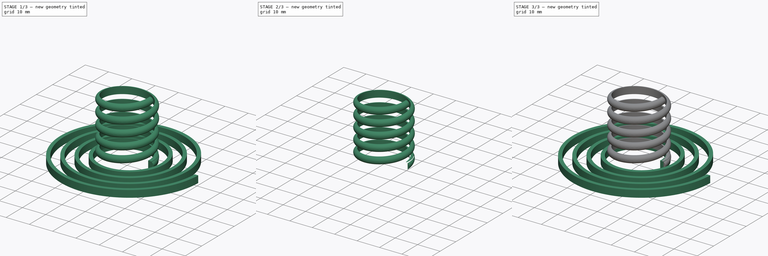
[diagram: build sequence overview — one tinted view per stage of 3, left to right]
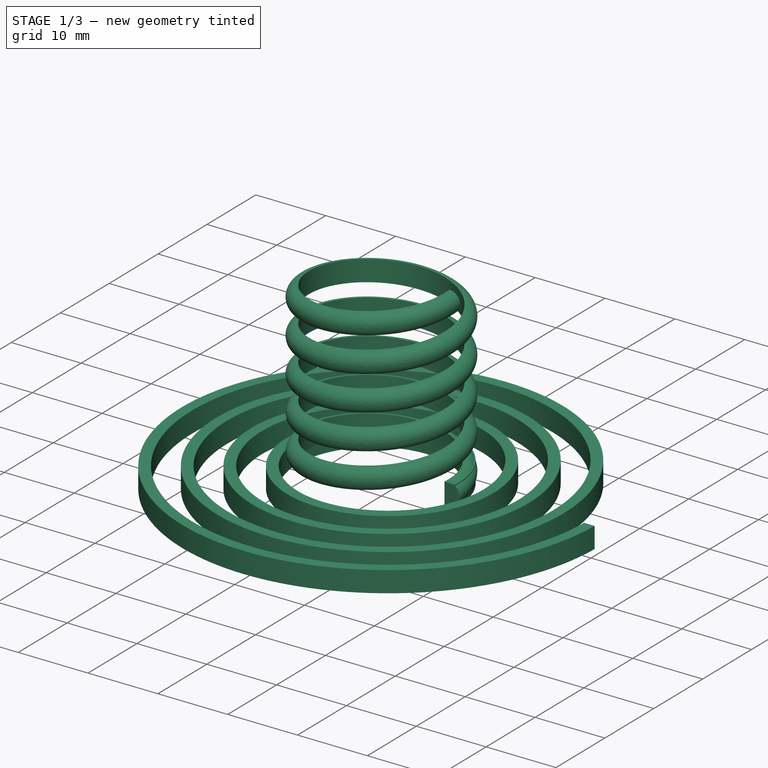
[diagram: stage 1 of 3 — iso view after this stage's code; geometry added in this stage tinted green]
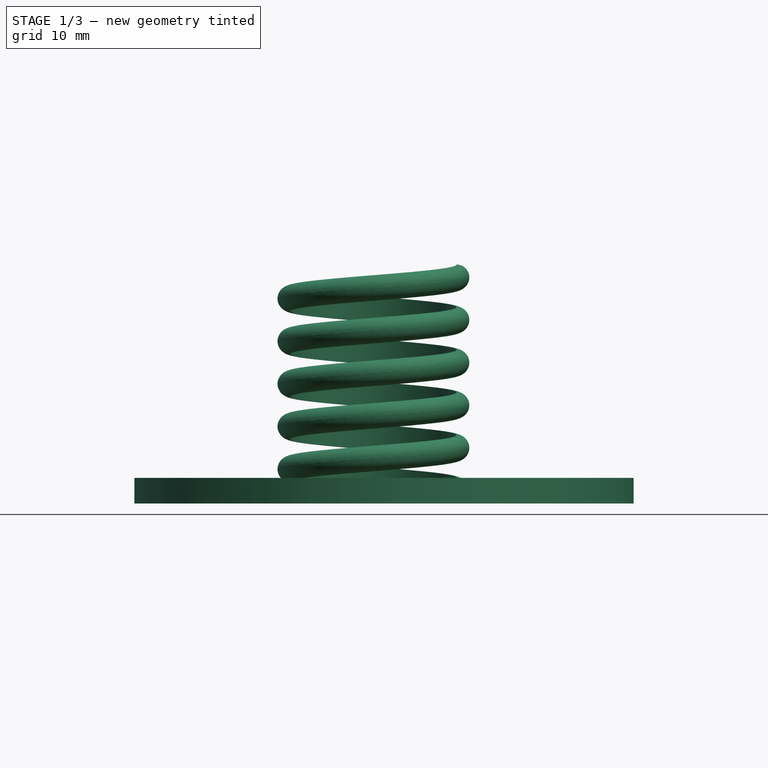
[diagram: stage 1 of 3 — front view after this stage's code; geometry added in this stage tinted green]
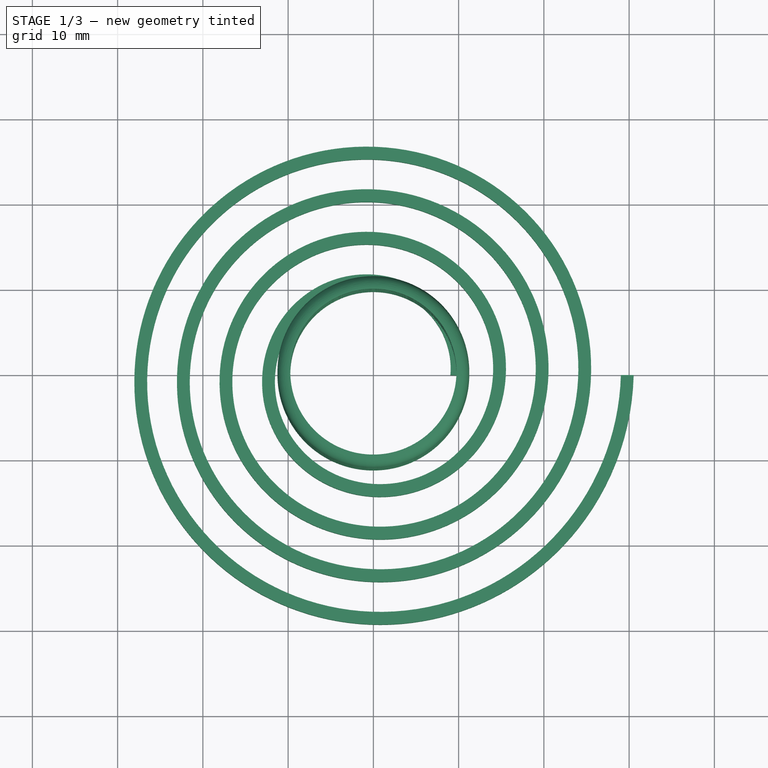
[diagram: stage 1 of 3 — top view after this stage's code; geometry added in this stage tinted green]
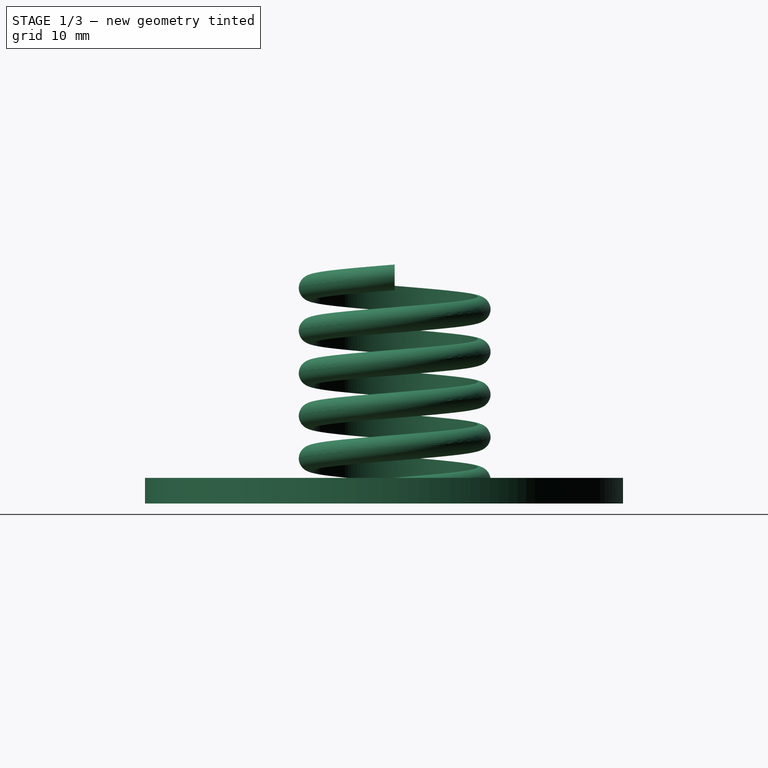
[diagram: stage 1 of 3 — right view after this stage's code; geometry added in this stage tinted green]
FCSTD DOCUMENT  (FreeCAD 0.18R16117 (Git))
Label: spiral emergency candleholder
License: All rights reserved
LicenseURL: http://en.wikipedia.org/wiki/All_rights_reserved
objects: Sketcher::SketchObject×3, Part::Sweep×3, Part::Spiral×2, Part::Helix×1, PartDesign::Body×1, Part::Cut×1, Part::MultiFuse×1
note: 12 computed .brp shape members not serialized (recipe doc carries the construction recipe); baked Part::Feature solids carry a one-line shape summary decoded from their .brp

FEATURE [Part::Helix] Helix
  Angle = 0
  AttacherType = Attacher::AttachEngine3D
  Height = 25
  LocalCoord = 0
  Pitch = 5
  Radius = 9.75
  Style = 1
FEATURE [Sketcher::SketchObject] Sketch003  label="Sketch001"
  MapMode = 5
  Placement = pos=(0,0,0) rot=(1,0,0;1.5708rad)
  sketch-geometry (2):
    g0: LineSegment StartX=9.75 StartY=2.9239e-12 StartZ=0 EndX=9.75 EndY=3 EndZ=0
    g1: ArcOfCircle CenterX=9.75033 CenterY=1.5 CenterZ=0 NormalX=0 NormalY=0 NormalZ=1 AngleXU=0 Radius=1.5 StartAngle=4.71217 EndAngle=7.8542
  constraints (4):
    c: DistanceY(g0,g0) = 3
    c: Vertical(g0)
    c: Coincident(g0,g1)
    c: Coincident(g1,g0)
FEATURE [PartDesign::Body] Body
  Group = -> [Sketch,Sketch003]
  Origin = -> Origin
FEATURE [Part::Sweep] Sweep001
  Frenet = true
  Sections = -> [Sketch003]
  Solid = true
  Spine = -> Helix
  Transition = 1
FEATURE [Part::Spiral] Spiral001
  AttacherType = Attacher::AttachEngine3D
  Growth = 5
  Radius = 9
  Rotations = 4
FEATURE [Sketcher::SketchObject] Sketch004
  MapMode = 5
  Placement = pos=(0,0,0) rot=(1,0,0;1.5708rad)
  Support = -> [XZ_Plane001]
  sketch-geometry (4):
    g0: LineSegment StartX=29.0288 StartY=-0.0265109 StartZ=0 EndX=30.5288 EndY=-0.0265109 EndZ=0
    g1: LineSegment StartX=30.5288 StartY=-0.0265109 StartZ=0 EndX=30.5288 EndY=2.97349 EndZ=0
    g2: LineSegment StartX=30.5288 StartY=2.97349 StartZ=0 EndX=29.0288 EndY=2.97349 EndZ=0
    g3: LineSegment StartX=29.0288 StartY=2.97349 StartZ=0 EndX=29.0288 EndY=-0.0265109 EndZ=0
  constraints (10):
    c: Coincident(g0,g1)
    c: Coincident(g1,g2)
    c: Coincident(g2,g3)
    c: Coincident(g3,g0)
    c: Horizontal(g0)
    c: Horizontal(g2)
    c: Vertical(g1)
    c: Vertical(g3)
    c: DistanceX(g2,g2) = 1.5
    c: DistanceY(g1,g1) = 3
FEATURE [Part::Sweep] Sweep002
  Frenet = true
  Sections = -> [Sketch004]
  Solid = true
  Spine = -> Spiral001 [Edge1]
  Transition = 1
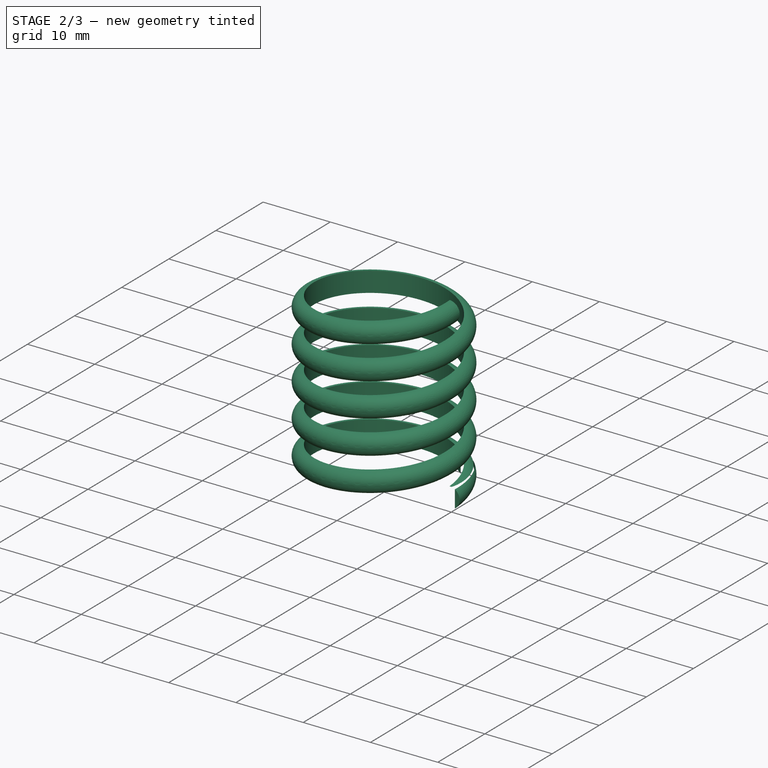
[diagram: stage 2 of 3 — iso view after this stage's code; geometry added in this stage tinted green]
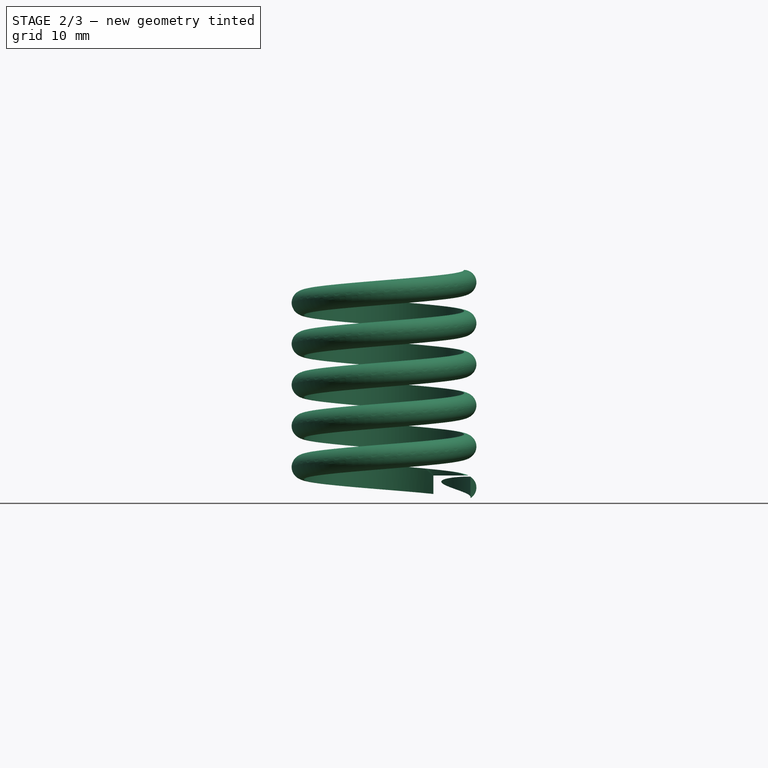
[diagram: stage 2 of 3 — front view after this stage's code; geometry added in this stage tinted green]
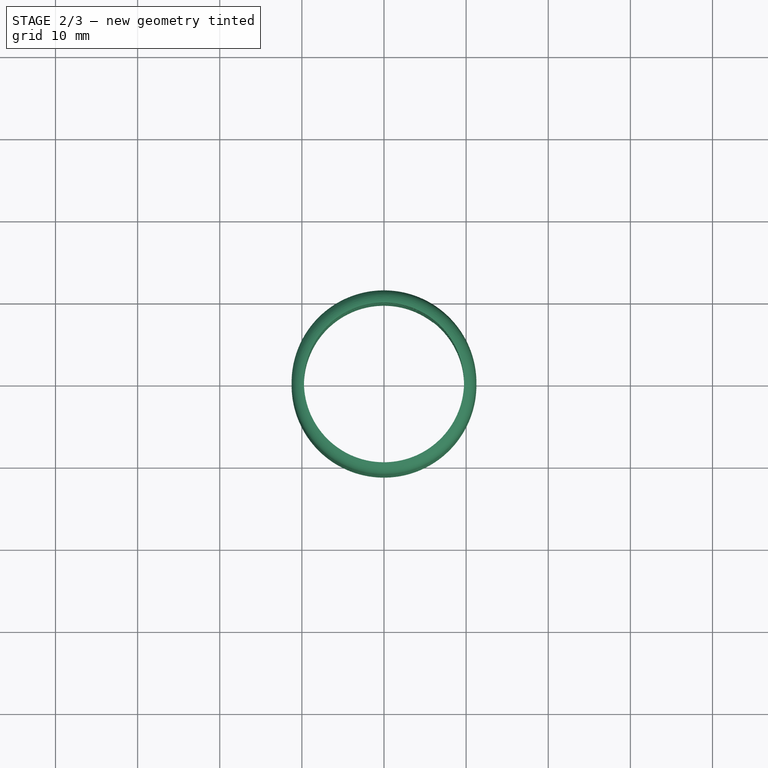
[diagram: stage 2 of 3 — top view after this stage's code; geometry added in this stage tinted green]
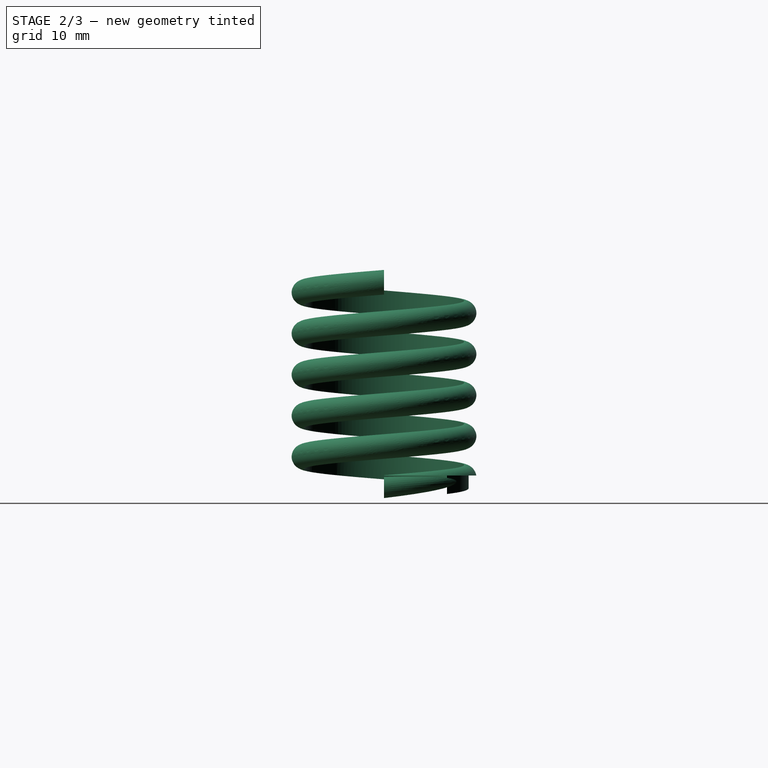
[diagram: stage 2 of 3 — right view after this stage's code; geometry added in this stage tinted green]
FEATURE [Part::Cut] Cut
  Base = -> Sweep001
  Tool = -> Sweep002
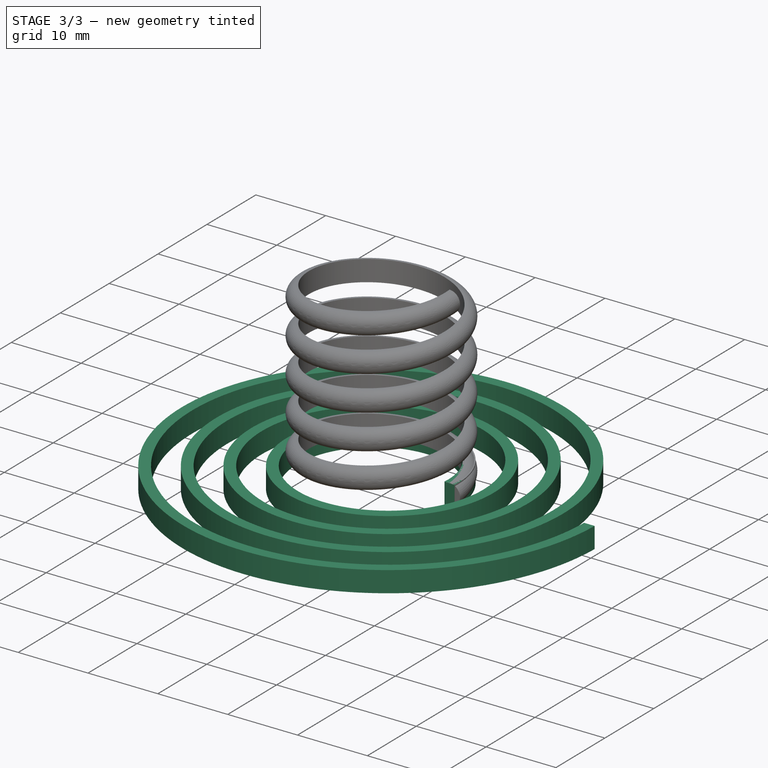
[diagram: stage 3 of 3 — iso view after this stage's code; geometry added in this stage tinted green]
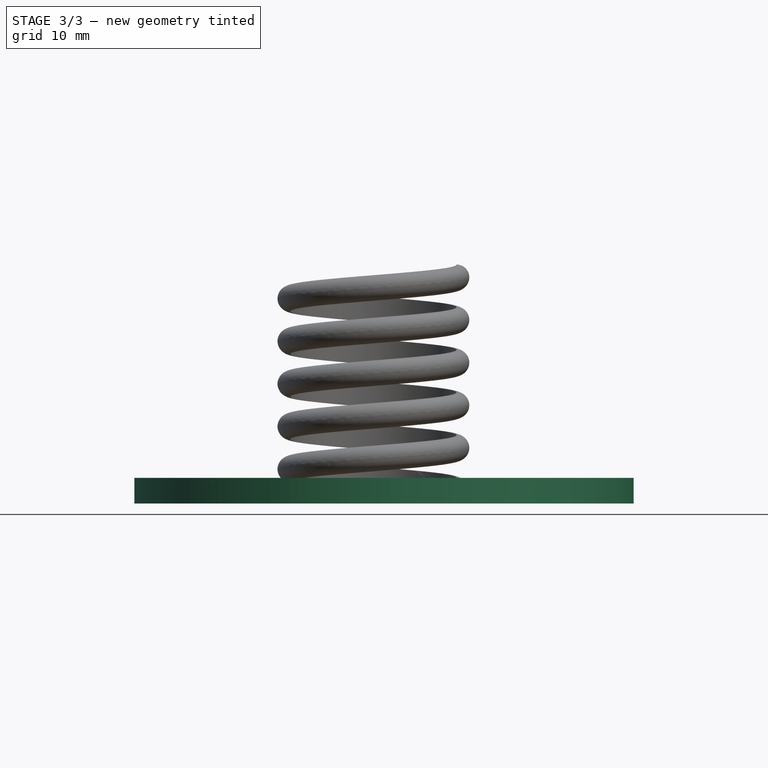
[diagram: stage 3 of 3 — front view after this stage's code; geometry added in this stage tinted green]
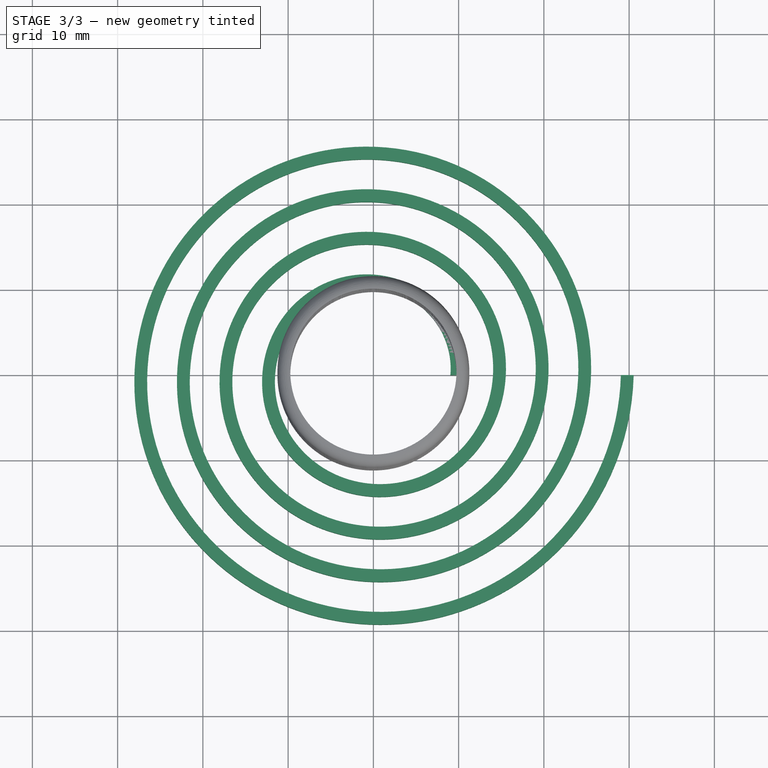
[diagram: stage 3 of 3 — top view after this stage's code; geometry added in this stage tinted green]
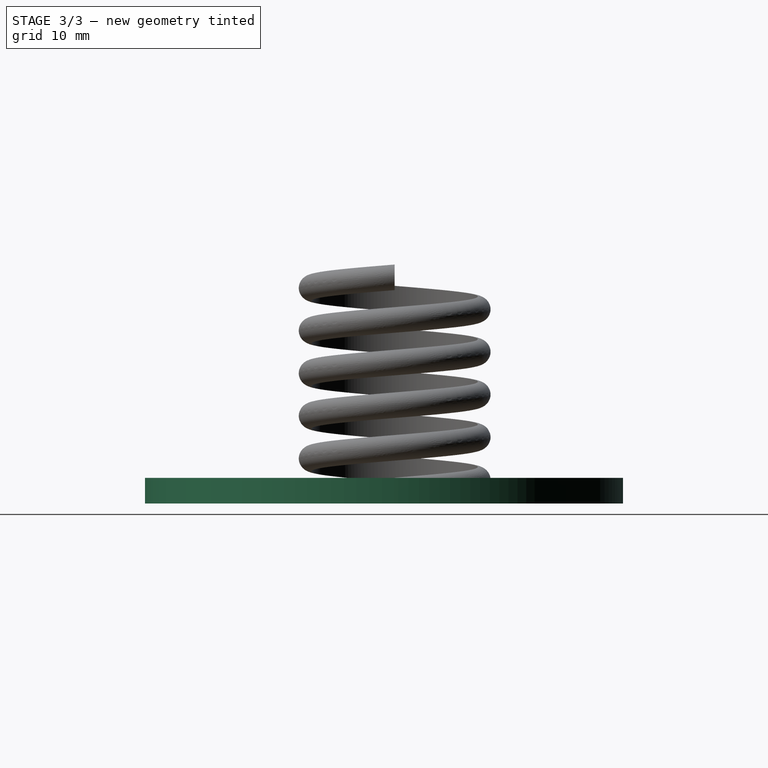
[diagram: stage 3 of 3 — right view after this stage's code; geometry added in this stage tinted green]
FEATURE [Part::Spiral] Spiral
  AttacherType = Attacher::AttachEngine3D
  Growth = 5
  Radius = 9
  Rotations = 4
FEATURE [Sketcher::SketchObject] Sketch
  MapMode = 5
  Placement = pos=(0,0,0) rot=(1,0,0;1.5708rad)
  Support = -> [XZ_Plane]
  sketch-geometry (4):
    g0: LineSegment StartX=29.0288 StartY=-0.0265109 StartZ=0 EndX=30.5288 EndY=-0.0265109 EndZ=0
    g1: LineSegment StartX=30.5288 StartY=-0.0265109 StartZ=0 EndX=30.5288 EndY=2.97349 EndZ=0
    g2: LineSegment StartX=30.5288 StartY=2.97349 StartZ=0 EndX=29.0288 EndY=2.97349 EndZ=0
    g3: LineSegment StartX=29.0288 StartY=2.97349 StartZ=0 EndX=29.0288 EndY=-0.0265109 EndZ=0
  constraints (10):
    c: Coincident(g0,g1)
    c: Coincident(g1,g2)
    c: Coincident(g2,g3)
    c: Coincident(g3,g0)
    c: Horizontal(g0)
    c: Horizontal(g2)
    c: Vertical(g1)
    c: Vertical(g3)
    c: DistanceX(g2,g2) = 1.5
    c: DistanceY(g1,g1) = 3
FEATURE [Part::Sweep] Sweep
  Frenet = true
  Sections = -> [Sketch]
  Solid = true
  Spine = -> Spiral [Edge1]
  Transition = 1
FEATURE [Part::MultiFuse] Fusion
  Shapes = -> [Cut,Sweep]
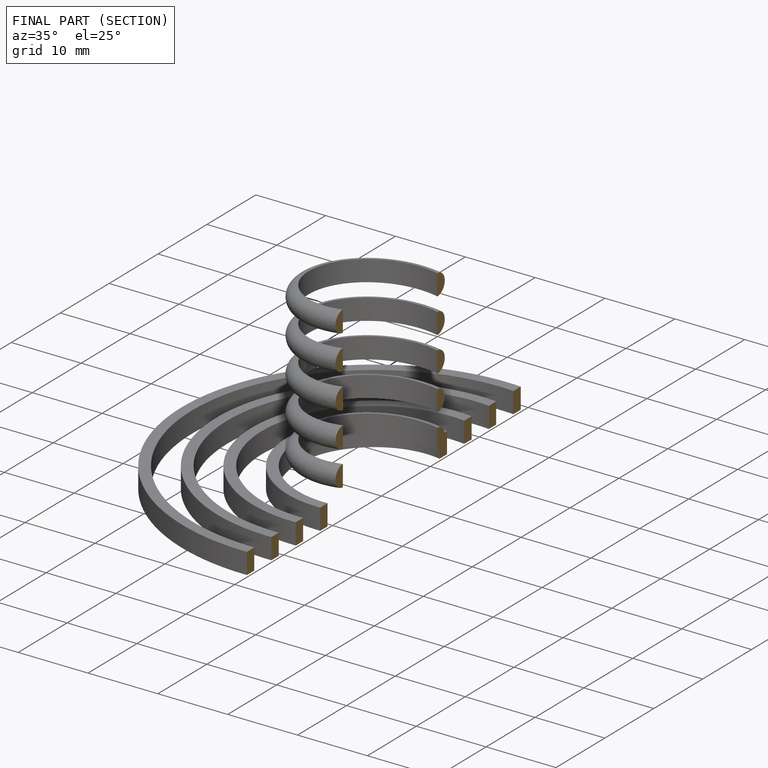
[diagram: finished part — half-section view (interior)]
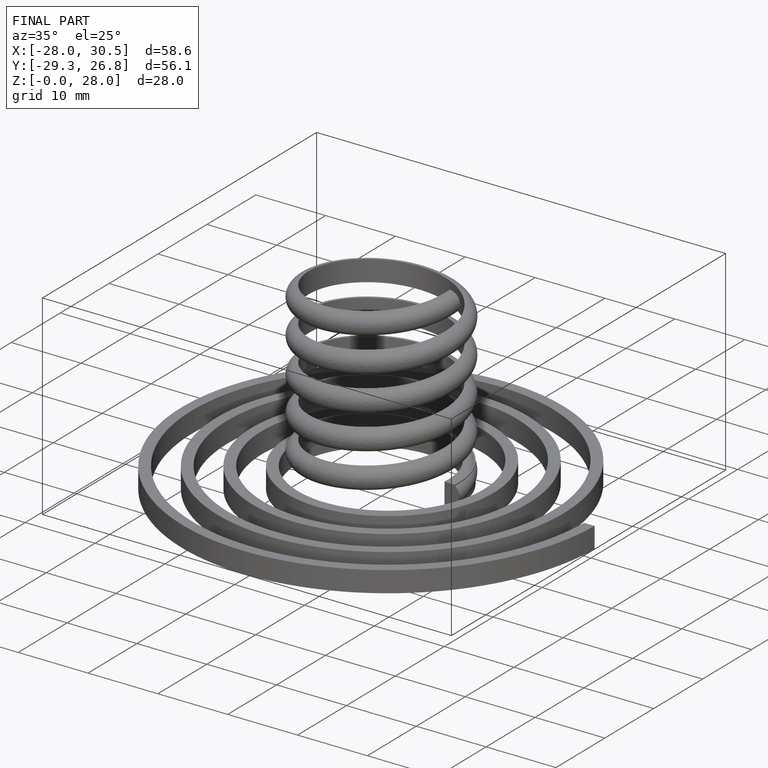
[diagram: finished part — iso view with bounding-box wireframe]
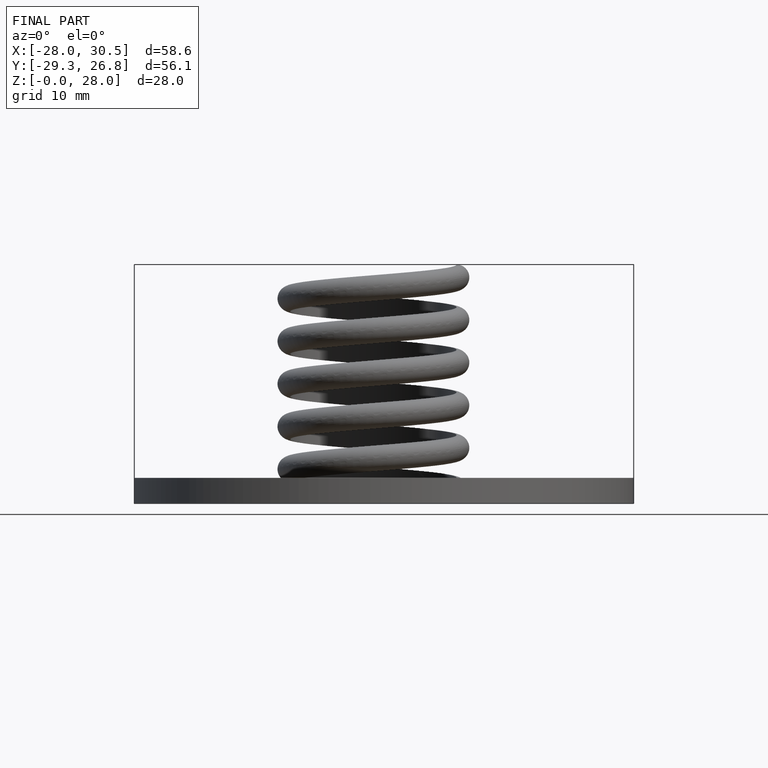
[diagram: finished part — front view with bounding-box wireframe]
